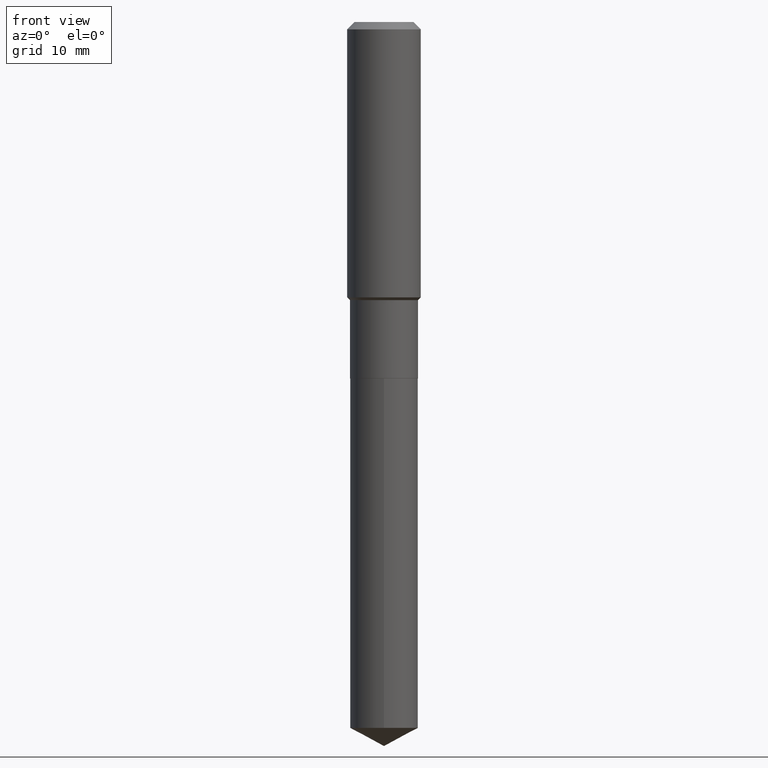
[diagram: clean part render]
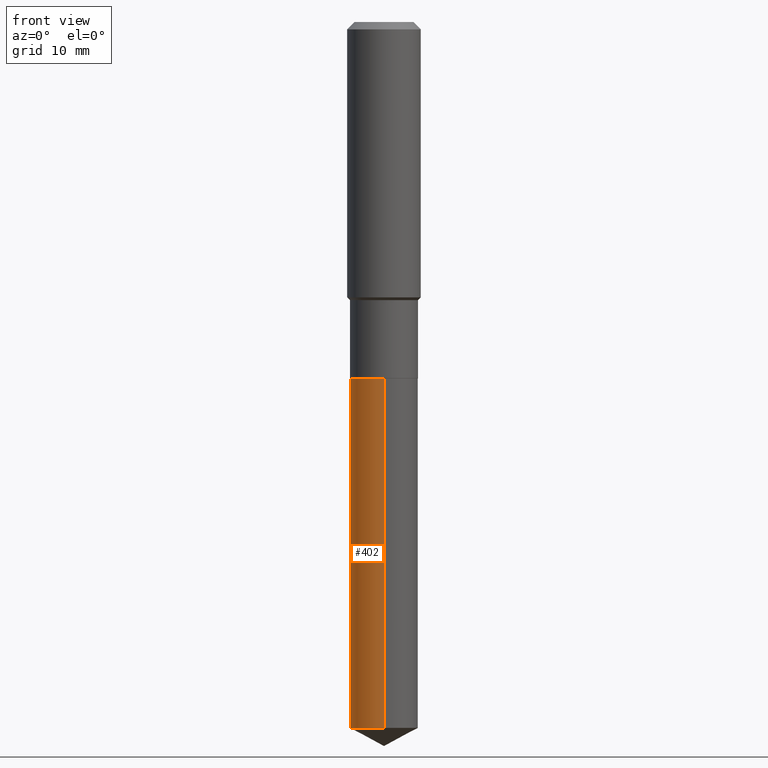
[diagram: same view with one face highlighted and labeled with its STEP entity id]
A machine part, front view. The second image highlights one B-rep face of the part: STEP entity #402.
In plain terms, the highlighted cylindrical surface (edge-blend (fillet) strip) has radius 5.5499 mm, axis along (-0, 0, 1).
Its self-contained STEP definition (entity closure, byte-faithful):
#13 = EDGE_CURVE ( 'NONE', #88, #222, #233, .T. ) ;
#14 = CARTESIAN_POINT ( 'NONE',  ( 1.107686542487297643E-28, -1.581465108594102164E-14, -4.529521489181966842 ) ) ;
#24 = ORIENTED_EDGE ( 'NONE', *, *, #13, .F. ) ;
#37 = VECTOR ( 'NONE', #126, 39.37007874015748143 ) ;
#49 = DIRECTION ( 'NONE',  ( -6.982962677686265922E-15, -1.000000000000000000, 2.500547362621751271E-15 ) ) ;
#53 = CARTESIAN_POINT ( 'NONE',  ( -1.525777345074393133E-15, -0.2185000000000079934, -2.287399999999998546 ) ) ;
#68 = CARTESIAN_POINT ( 'NONE',  ( 5.593765347267879611E-29, -7.986414414469808493E-15, -2.287399999999998990 ) ) ;
#88 = VERTEX_POINT ( 'NONE', #192 ) ;
#95 = CARTESIAN_POINT ( 'NONE',  ( -1.525777345074393133E-15, -0.2185000000000079934, -2.287399999999998546 ) ) ;
#126 = DIRECTION ( 'NONE',  ( -2.445496421162079579E-29, 3.491441792624415852E-15, 1.000000000000000000 ) ) ;
#137 = CARTESIAN_POINT ( 'NONE',  ( -1.525777345074338504E-15, -0.2185000000000158482, -4.529521489181966842 ) ) ;
#138 = DIRECTION ( 'NONE',  ( -6.982962677686265922E-15, -1.000000000000000000, 3.750821043932626512E-15 ) ) ;
#192 = CARTESIAN_POINT ( 'NONE',  ( 1.552535877635929740E-15, 0.2184999999999842346, -4.529521489181967731 ) ) ;
#207 = EDGE_CURVE ( 'NONE', #88, #366, #383, .T. ) ;
#212 = DIRECTION ( 'NONE',  ( -2.445496421162079859E-29, 3.491441792624415852E-15, 1.000000000000000000 ) ) ;
#219 = DIRECTION ( 'NONE',  ( -2.445496421162079859E-29, 3.491441792624415852E-15, 1.000000000000000000 ) ) ;
#222 = VERTEX_POINT ( 'NONE', #476 ) ;
#233 = LINE ( 'NONE', #239, #288 ) ;
#239 = CARTESIAN_POINT ( 'NONE',  ( 1.552535877635874716E-15, 0.2184999999999920062, -2.287399999999999878 ) ) ;
#250 = EDGE_CURVE ( 'NONE', #366, #262, #471, .T. ) ;
#262 = VERTEX_POINT ( 'NONE', #95 ) ;
#277 = DIRECTION ( 'NONE',  ( -2.445496421162079579E-29, 3.491441792624415852E-15, 1.000000000000000000 ) ) ;
#288 = VECTOR ( 'NONE', #277, 39.37007874015748143 ) ;
#296 = DIRECTION ( 'NONE',  ( -6.982962677686265922E-15, -1.000000000000000000, 3.750821043932626512E-15 ) ) ;
#302 = EDGE_CURVE ( 'NONE', #222, #262, #410, .T. ) ;
#304 = AXIS2_PLACEMENT_3D ( 'NONE', #14, #212, #49 ) ;
#333 = ORIENTED_EDGE ( 'NONE', *, *, #250, .T. ) ;
#365 = CYLINDRICAL_SURFACE ( 'NONE', #474, 0.2184999999999999998 ) ;
#366 = VERTEX_POINT ( 'NONE', #137 ) ;
#378 = ORIENTED_EDGE ( 'NONE', *, *, #207, .T. ) ;
#383 = CIRCLE ( 'NONE', #304, 0.2184999999999999998 ) ;
#402 = ADVANCED_FACE ( 'NONE', ( #407 ), #365, .T. ) ;
#407 = FACE_OUTER_BOUND ( 'NONE', #417, .T. ) ;
#410 = CIRCLE ( 'NONE', #451, 0.2184999999999999998 ) ;
#411 = DIRECTION ( 'NONE',  ( -2.445496421162079859E-29, 3.491441792624415852E-15, 1.000000000000000000 ) ) ;
#417 = EDGE_LOOP ( 'NONE', ( #24, #378, #333, #486 ) ) ;
#451 = AXIS2_PLACEMENT_3D ( 'NONE', #68, #411, #296 ) ;
#471 = LINE ( 'NONE', #53, #37 ) ;
#474 = AXIS2_PLACEMENT_3D ( 'NONE', #482, #219, #138 ) ;
#476 = CARTESIAN_POINT ( 'NONE',  ( 1.552535877635929740E-15, 0.2184999999999920062, -2.287399999999999878 ) ) ;
#482 = CARTESIAN_POINT ( 'NONE',  ( 5.593765347267879611E-29, -7.986414414469808493E-15, -2.287399999999998990 ) ) ;
#486 = ORIENTED_EDGE ( 'NONE', *, *, #302, .F. ) ;